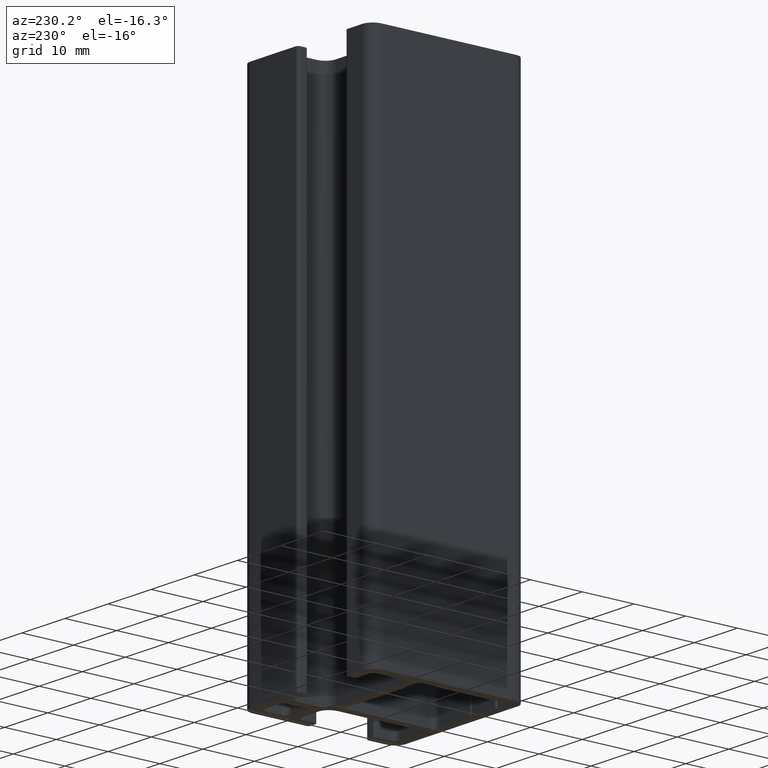
[diagram: clean part render]
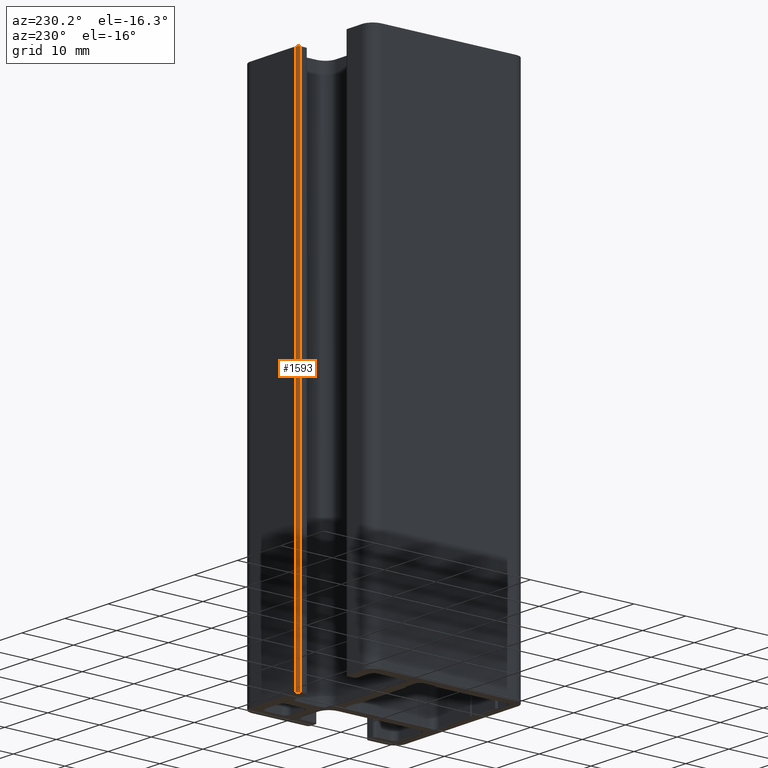
[diagram: same view with one face highlighted and labeled with its STEP entity id]
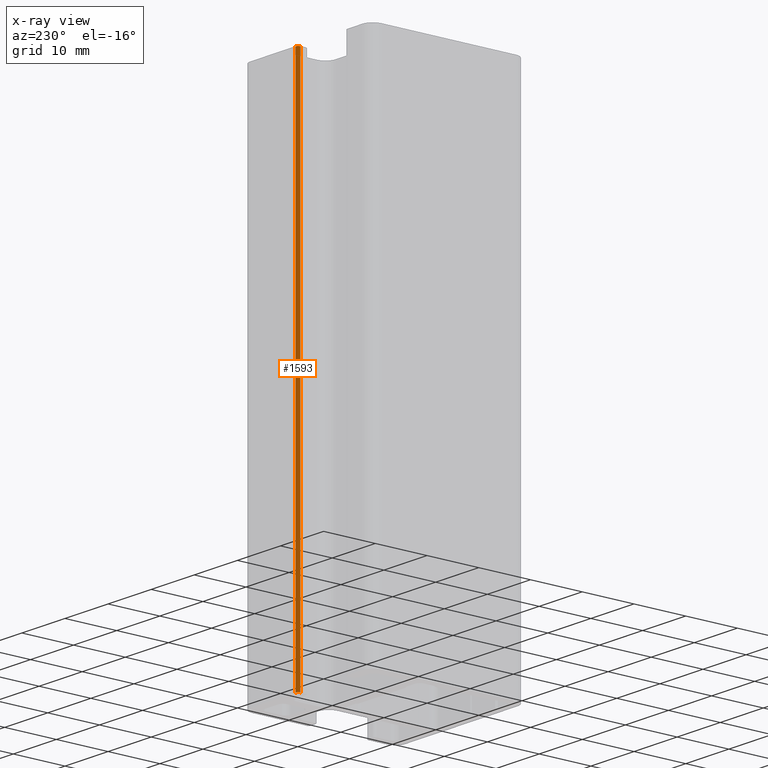
[diagram: x-ray of the same camera — body ghosted, the highlighted face saturated]
A machine part, auxiliary view. The second image highlights one B-rep face of the part: STEP entity #1593.
The next image is the same camera in x-ray: the body ghosted, the highlighted face saturated — about 0% of this face is hidden behind the body in this view.
In plain terms, the highlighted cylindrical surface (edge-blend (fillet) strip) has radius 0.5 mm, axis along (0, 0, 1).
Its self-contained STEP definition (entity closure, byte-faithful):
#131=FACE_OUTER_BOUND('',#211,.T.);
#211=EDGE_LOOP('',(#1277,#1278,#1279,#1280));
#377=LINE('',#2568,#555);
#379=LINE('',#2574,#557);
#555=VECTOR('',#2091,100.);
#557=VECTOR('',#2097,100.);
#629=CIRCLE('',#1714,0.5);
#630=CIRCLE('',#1715,0.5);
#769=VERTEX_POINT('',#2565);
#770=VERTEX_POINT('',#2567);
#771=VERTEX_POINT('',#2571);
#772=VERTEX_POINT('',#2573);
#983=EDGE_CURVE('',#770,#769,#377,.T.);
#985=EDGE_CURVE('',#771,#769,#629,.T.);
#986=EDGE_CURVE('',#771,#772,#379,.T.);
#987=EDGE_CURVE('',#770,#772,#630,.T.);
#1277=ORIENTED_EDGE('',*,*,#985,.F.);
#1278=ORIENTED_EDGE('',*,*,#986,.T.);
#1279=ORIENTED_EDGE('',*,*,#987,.F.);
#1280=ORIENTED_EDGE('',*,*,#983,.T.);
#1524=CYLINDRICAL_SURFACE('',#1713,0.5);
#1593=ADVANCED_FACE('',(#131),#1524,.T.);
#1713=AXIS2_PLACEMENT_3D('',#2570,#2093,#2094);
#1714=AXIS2_PLACEMENT_3D('',#2572,#2095,#2096);
#1715=AXIS2_PLACEMENT_3D('',#2575,#2098,#2099);
#2091=DIRECTION('',(0.,0.,1.));
#2093=DIRECTION('center_axis',(0.,0.,1.));
#2094=DIRECTION('ref_axis',(0.,-1.,0.));
#2095=DIRECTION('center_axis',(0.,0.,1.));
#2096=DIRECTION('ref_axis',(0.,-1.,0.));
#2097=DIRECTION('',(0.,0.,-1.));
#2098=DIRECTION('center_axis',(0.,0.,-1.));
#2099=DIRECTION('ref_axis',(0.,-1.,0.));
#2565=CARTESIAN_POINT('',(2.,14.5,100.));
#2567=CARTESIAN_POINT('',(2.,14.5,0.));
#2568=CARTESIAN_POINT('',(2.,14.5,0.));
#2570=CARTESIAN_POINT('Origin',(2.5,14.5,0.));
#2571=CARTESIAN_POINT('',(2.5,15.,100.));
#2572=CARTESIAN_POINT('Origin',(2.5,14.5,100.));
#2573=CARTESIAN_POINT('',(2.5,15.,0.));
#2574=CARTESIAN_POINT('',(2.50000000000759,14.9999999960879,0.));
#2575=CARTESIAN_POINT('Origin',(2.5,14.5,0.));